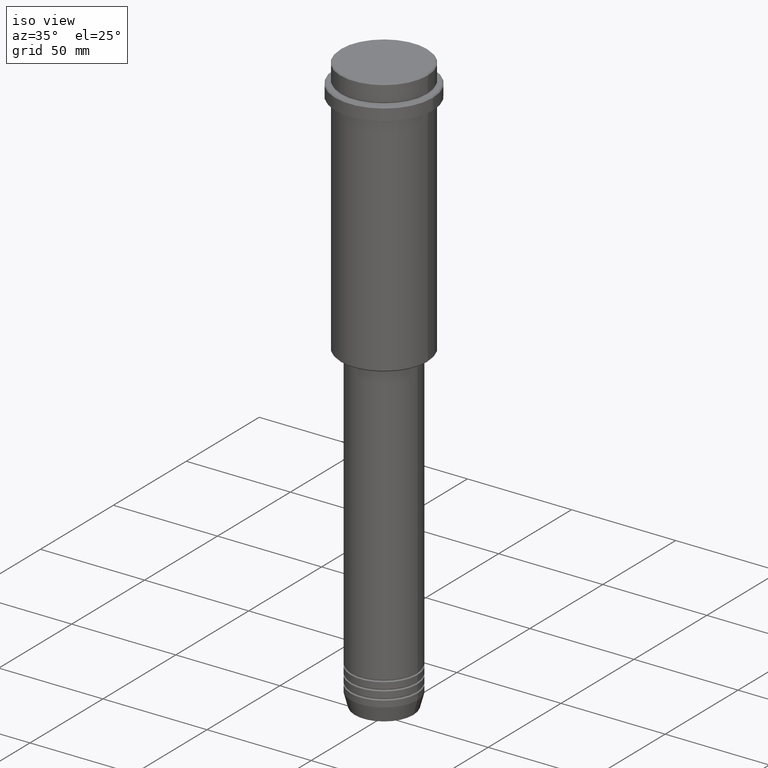
[diagram: clean part render]
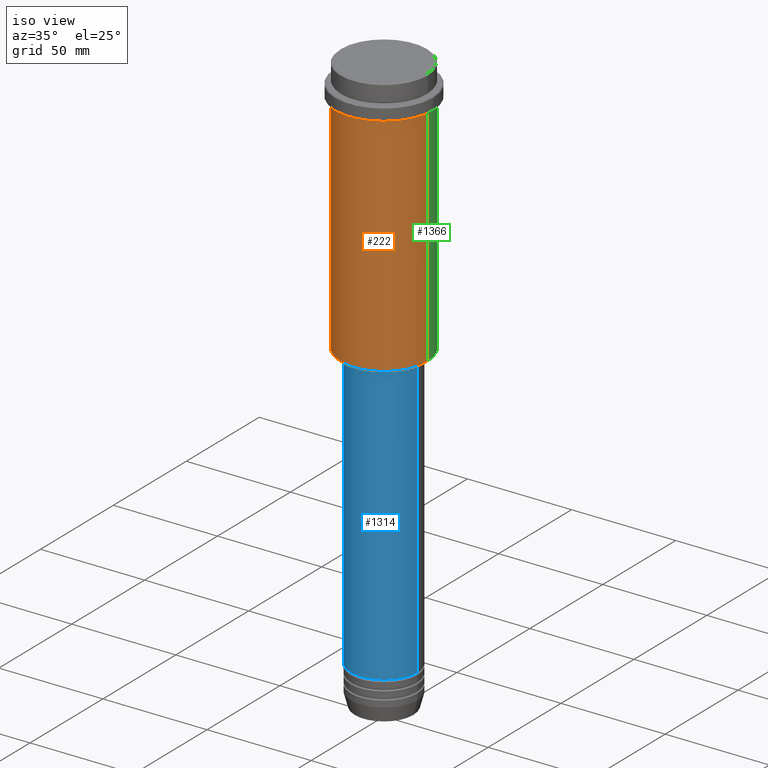
[diagram: same view with three faces highlighted in distinct colors, each labeled with its STEP entity id]
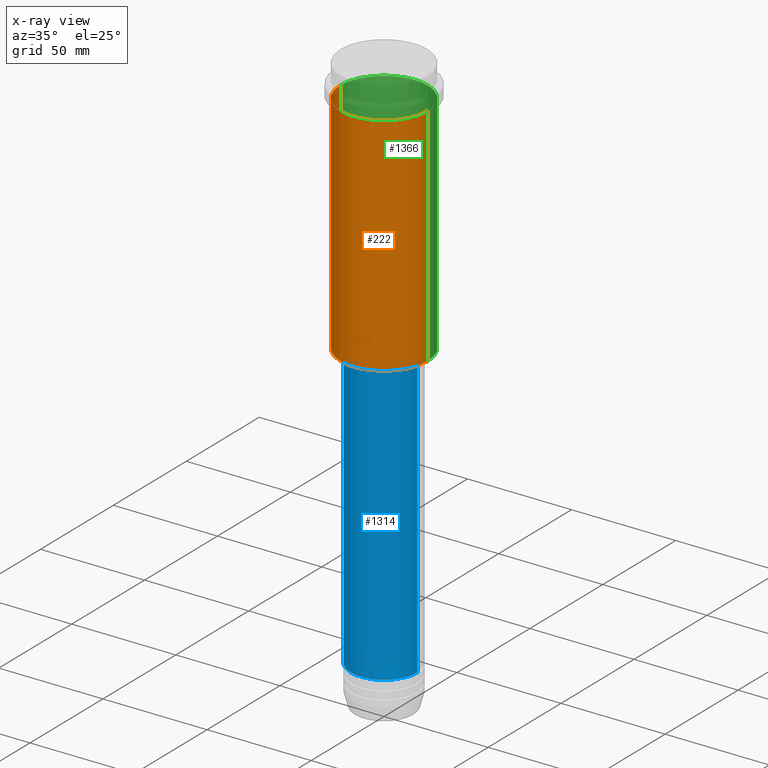
[diagram: x-ray of the same camera — body ghosted, the three highlighted faces saturated]
A machine part, iso view with three faces highlighted in distinct colors.
The next image is the same camera in x-ray (body ghosted, the three faces saturated) — at least one of them is partly hidden behind the body in this view.
Their STEP definitions:

[orange] entity #222 — the highlighted cylindrical surface (partial cylindrical patch) has radius 21 mm, axis along (-0, -0, 1).
#15 = CARTESIAN_POINT ( 'NONE',  ( -21.00000000000000000, 2.571758278209441661E-15, -16.00000000000000355 ) ) ;
#42 = DIRECTION ( 'NONE',  ( -0.000000000000000000, -0.000000000000000000, 1.000000000000000000 ) ) ;
#47 = CARTESIAN_POINT ( 'NONE',  ( 21.00000000000000000, 0.000000000000000000, 0.000000000000000000 ) ) ;
#76 = DIRECTION ( 'NONE',  ( -0.000000000000000000, -0.000000000000000000, 1.000000000000000000 ) ) ;
#88 = CIRCLE ( 'NONE', #300, 21.00000000000000000 ) ;
#111 = EDGE_CURVE ( 'NONE', #1361, #1001, #1218, .T. ) ;
#128 = LINE ( 'NONE', #47, #1015 ) ;
#136 = DIRECTION ( 'NONE',  ( -0.000000000000000000, -0.000000000000000000, 1.000000000000000000 ) ) ;
#207 = CYLINDRICAL_SURFACE ( 'NONE', #1414, 21.00000000000000000 ) ;
#222 = ADVANCED_FACE ( 'NONE', ( #1124 ), #207, .T. ) ;
#242 = DIRECTION ( 'NONE',  ( -0.000000000000000000, -0.000000000000000000, 1.000000000000000000 ) ) ;
#262 = ORIENTED_EDGE ( 'NONE', *, *, #111, .F. ) ;
#279 = ORIENTED_EDGE ( 'NONE', *, *, #645, .T. ) ;
#300 = AXIS2_PLACEMENT_3D ( 'NONE', #619, #42, #1358 ) ;
#306 = EDGE_CURVE ( 'NONE', #1222, #1001, #128, .T. ) ;
#425 = CARTESIAN_POINT ( 'NONE',  ( 0.000000000000000000, 0.000000000000000000, 0.000000000000000000 ) ) ;
#451 = CARTESIAN_POINT ( 'NONE',  ( 21.00000000000000000, 0.000000000000000000, -16.00000000000000355 ) ) ;
#516 = VECTOR ( 'NONE', #136, 1000.000000000000000 ) ;
#522 = DIRECTION ( 'NONE',  ( 1.000000000000000000, 0.000000000000000000, 0.000000000000000000 ) ) ;
#550 = DIRECTION ( 'NONE',  ( -0.000000000000000000, -0.000000000000000000, 1.000000000000000000 ) ) ;
#619 = CARTESIAN_POINT ( 'NONE',  ( 0.000000000000000000, 0.000000000000000000, -124.4999999999999716 ) ) ;
#645 = EDGE_CURVE ( 'NONE', #1120, #1222, #88, .T. ) ;
#697 = CARTESIAN_POINT ( 'NONE',  ( -21.00000000000000000, 2.571758278209441661E-15, 0.000000000000000000 ) ) ;
#708 = CARTESIAN_POINT ( 'NONE',  ( -21.00000000000000000, 2.571758278209441661E-15, -124.4999999999999716 ) ) ;
#758 = ORIENTED_EDGE ( 'NONE', *, *, #306, .T. ) ;
#827 = ORIENTED_EDGE ( 'NONE', *, *, #1150, .F. ) ;
#845 = CARTESIAN_POINT ( 'NONE',  ( 21.00000000000000000, 0.000000000000000000, -124.4999999999999716 ) ) ;
#1001 = VERTEX_POINT ( 'NONE', #451 ) ;
#1015 = VECTOR ( 'NONE', #242, 1000.000000000000000 ) ;
#1099 = DIRECTION ( 'NONE',  ( 1.000000000000000000, 0.000000000000000000, 0.000000000000000000 ) ) ;
#1120 = VERTEX_POINT ( 'NONE', #708 ) ;
#1124 = FACE_OUTER_BOUND ( 'NONE', #1287, .T. ) ;
#1150 = EDGE_CURVE ( 'NONE', #1120, #1361, #1152, .T. ) ;
#1152 = LINE ( 'NONE', #697, #516 ) ;
#1154 = AXIS2_PLACEMENT_3D ( 'NONE', #1273, #76, #522 ) ;
#1218 = CIRCLE ( 'NONE', #1154, 21.00000000000000000 ) ;
#1222 = VERTEX_POINT ( 'NONE', #845 ) ;
#1273 = CARTESIAN_POINT ( 'NONE',  ( 0.000000000000000000, 0.000000000000000000, -16.00000000000000355 ) ) ;
#1287 = EDGE_LOOP ( 'NONE', ( #827, #279, #758, #262 ) ) ;
#1358 = DIRECTION ( 'NONE',  ( -1.000000000000000000, 0.000000000000000000, 0.000000000000000000 ) ) ;
#1361 = VERTEX_POINT ( 'NONE', #15 ) ;
#1414 = AXIS2_PLACEMENT_3D ( 'NONE', #425, #550, #1099 ) ;

[blue] entity #1314 — the highlighted cylindrical surface (partial cylindrical patch) has radius 16 mm, axis along (-0, -0, 1).
#68 = AXIS2_PLACEMENT_3D ( 'NONE', #413, #284, #1043 ) ;
#106 = DIRECTION ( 'NONE',  ( -0.000000000000000000, -0.000000000000000000, 1.000000000000000000 ) ) ;
#107 = DIRECTION ( 'NONE',  ( 1.000000000000000000, 0.000000000000000000, 0.000000000000000000 ) ) ;
#168 = VERTEX_POINT ( 'NONE', #847 ) ;
#284 = DIRECTION ( 'NONE',  ( -0.000000000000000000, -0.000000000000000000, 1.000000000000000000 ) ) ;
#288 = DIRECTION ( 'NONE',  ( 1.000000000000000000, 0.000000000000000000, 0.000000000000000000 ) ) ;
#295 = DIRECTION ( 'NONE',  ( -0.000000000000000000, -0.000000000000000000, 1.000000000000000000 ) ) ;
#393 = LINE ( 'NONE', #426, #488 ) ;
#413 = CARTESIAN_POINT ( 'NONE',  ( 0.000000000000000000, 0.000000000000000000, -260.9999999999998863 ) ) ;
#426 = CARTESIAN_POINT ( 'NONE',  ( -16.00000000000000000, 1.959434878635765131E-15, 0.000000000000000000 ) ) ;
#458 = ORIENTED_EDGE ( 'NONE', *, *, #837, .T. ) ;
#462 = CARTESIAN_POINT ( 'NONE',  ( 0.000000000000000000, 0.000000000000000000, -126.0000000000001137 ) ) ;
#488 = VECTOR ( 'NONE', #964, 1000.000000000000000 ) ;
#532 = CARTESIAN_POINT ( 'NONE',  ( 0.000000000000000000, 0.000000000000000000, 0.000000000000000000 ) ) ;
#582 = CARTESIAN_POINT ( 'NONE',  ( 16.00000000000000000, 0.000000000000000000, -260.9999999999998863 ) ) ;
#627 = CIRCLE ( 'NONE', #1137, 16.00000000000000355 ) ;
#662 = ORIENTED_EDGE ( 'NONE', *, *, #1031, .F. ) ;
#698 = EDGE_CURVE ( 'NONE', #168, #939, #393, .T. ) ;
#704 = CARTESIAN_POINT ( 'NONE',  ( -16.00000000000000355, 1.959434878635765526E-15, -126.0000000000001137 ) ) ;
#721 = VERTEX_POINT ( 'NONE', #874 ) ;
#751 = FACE_OUTER_BOUND ( 'NONE', #1071, .T. ) ;
#779 = ORIENTED_EDGE ( 'NONE', *, *, #698, .F. ) ;
#837 = EDGE_CURVE ( 'NONE', #935, #721, #1082, .T. ) ;
#843 = CIRCLE ( 'NONE', #68, 16.00000000000000000 ) ;
#847 = CARTESIAN_POINT ( 'NONE',  ( -16.00000000000000000, 1.959434878635765131E-15, -260.9999999999998863 ) ) ;
#874 = CARTESIAN_POINT ( 'NONE',  ( 16.00000000000000355, 0.000000000000000000, -126.0000000000001137 ) ) ;
#902 = DIRECTION ( 'NONE',  ( -0.000000000000000000, -0.000000000000000000, 1.000000000000000000 ) ) ;
#909 = VECTOR ( 'NONE', #106, 1000.000000000000000 ) ;
#935 = VERTEX_POINT ( 'NONE', #582 ) ;
#939 = VERTEX_POINT ( 'NONE', #704 ) ;
#964 = DIRECTION ( 'NONE',  ( -0.000000000000000000, -0.000000000000000000, 1.000000000000000000 ) ) ;
#1002 = CARTESIAN_POINT ( 'NONE',  ( 16.00000000000000000, 0.000000000000000000, 0.000000000000000000 ) ) ;
#1008 = ORIENTED_EDGE ( 'NONE', *, *, #1261, .T. ) ;
#1031 = EDGE_CURVE ( 'NONE', #939, #721, #627, .T. ) ;
#1043 = DIRECTION ( 'NONE',  ( 1.000000000000000000, 0.000000000000000000, 0.000000000000000000 ) ) ;
#1054 = CYLINDRICAL_SURFACE ( 'NONE', #1266, 16.00000000000000000 ) ;
#1071 = EDGE_LOOP ( 'NONE', ( #779, #1008, #458, #662 ) ) ;
#1082 = LINE ( 'NONE', #1002, #909 ) ;
#1137 = AXIS2_PLACEMENT_3D ( 'NONE', #462, #902, #107 ) ;
#1261 = EDGE_CURVE ( 'NONE', #168, #935, #843, .T. ) ;
#1266 = AXIS2_PLACEMENT_3D ( 'NONE', #532, #295, #288 ) ;
#1314 = ADVANCED_FACE ( 'NONE', ( #751 ), #1054, .T. ) ;

[green] entity #1366 — the highlighted cylindrical surface (partial cylindrical patch) has radius 21 mm, axis along (-0, -0, 1).
#15 = CARTESIAN_POINT ( 'NONE',  ( -21.00000000000000000, 2.571758278209441661E-15, -16.00000000000000355 ) ) ;
#47 = CARTESIAN_POINT ( 'NONE',  ( 21.00000000000000000, 0.000000000000000000, 0.000000000000000000 ) ) ;
#64 = AXIS2_PLACEMENT_3D ( 'NONE', #1118, #1221, #868 ) ;
#99 = ORIENTED_EDGE ( 'NONE', *, *, #1088, .F. ) ;
#128 = LINE ( 'NONE', #47, #1015 ) ;
#136 = DIRECTION ( 'NONE',  ( -0.000000000000000000, -0.000000000000000000, 1.000000000000000000 ) ) ;
#137 = CIRCLE ( 'NONE', #674, 21.00000000000000000 ) ;
#151 = ORIENTED_EDGE ( 'NONE', *, *, #306, .F. ) ;
#242 = DIRECTION ( 'NONE',  ( -0.000000000000000000, -0.000000000000000000, 1.000000000000000000 ) ) ;
#306 = EDGE_CURVE ( 'NONE', #1222, #1001, #128, .T. ) ;
#323 = FACE_OUTER_BOUND ( 'NONE', #493, .T. ) ;
#451 = CARTESIAN_POINT ( 'NONE',  ( 21.00000000000000000, 0.000000000000000000, -16.00000000000000355 ) ) ;
#493 = EDGE_LOOP ( 'NONE', ( #601, #754, #99, #151 ) ) ;
#516 = VECTOR ( 'NONE', #136, 1000.000000000000000 ) ;
#520 = CARTESIAN_POINT ( 'NONE',  ( 0.000000000000000000, 0.000000000000000000, -124.4999999999999716 ) ) ;
#524 = DIRECTION ( 'NONE',  ( -1.000000000000000000, 0.000000000000000000, 0.000000000000000000 ) ) ;
#601 = ORIENTED_EDGE ( 'NONE', *, *, #757, .T. ) ;
#616 = CARTESIAN_POINT ( 'NONE',  ( 0.000000000000000000, 0.000000000000000000, -16.00000000000000355 ) ) ;
#655 = DIRECTION ( 'NONE',  ( 1.000000000000000000, 0.000000000000000000, 0.000000000000000000 ) ) ;
#674 = AXIS2_PLACEMENT_3D ( 'NONE', #616, #682, #655 ) ;
#682 = DIRECTION ( 'NONE',  ( -0.000000000000000000, -0.000000000000000000, 1.000000000000000000 ) ) ;
#697 = CARTESIAN_POINT ( 'NONE',  ( -21.00000000000000000, 2.571758278209441661E-15, 0.000000000000000000 ) ) ;
#708 = CARTESIAN_POINT ( 'NONE',  ( -21.00000000000000000, 2.571758278209441661E-15, -124.4999999999999716 ) ) ;
#754 = ORIENTED_EDGE ( 'NONE', *, *, #1150, .T. ) ;
#757 = EDGE_CURVE ( 'NONE', #1222, #1120, #797, .T. ) ;
#797 = CIRCLE ( 'NONE', #950, 21.00000000000000000 ) ;
#845 = CARTESIAN_POINT ( 'NONE',  ( 21.00000000000000000, 0.000000000000000000, -124.4999999999999716 ) ) ;
#868 = DIRECTION ( 'NONE',  ( 1.000000000000000000, 0.000000000000000000, 0.000000000000000000 ) ) ;
#898 = CYLINDRICAL_SURFACE ( 'NONE', #64, 21.00000000000000000 ) ;
#950 = AXIS2_PLACEMENT_3D ( 'NONE', #520, #1079, #524 ) ;
#1001 = VERTEX_POINT ( 'NONE', #451 ) ;
#1015 = VECTOR ( 'NONE', #242, 1000.000000000000000 ) ;
#1079 = DIRECTION ( 'NONE',  ( -0.000000000000000000, -0.000000000000000000, 1.000000000000000000 ) ) ;
#1088 = EDGE_CURVE ( 'NONE', #1001, #1361, #137, .T. ) ;
#1118 = CARTESIAN_POINT ( 'NONE',  ( 0.000000000000000000, 0.000000000000000000, 0.000000000000000000 ) ) ;
#1120 = VERTEX_POINT ( 'NONE', #708 ) ;
#1150 = EDGE_CURVE ( 'NONE', #1120, #1361, #1152, .T. ) ;
#1152 = LINE ( 'NONE', #697, #516 ) ;
#1221 = DIRECTION ( 'NONE',  ( -0.000000000000000000, -0.000000000000000000, 1.000000000000000000 ) ) ;
#1222 = VERTEX_POINT ( 'NONE', #845 ) ;
#1361 = VERTEX_POINT ( 'NONE', #15 ) ;
#1366 = ADVANCED_FACE ( 'NONE', ( #323 ), #898, .T. ) ;